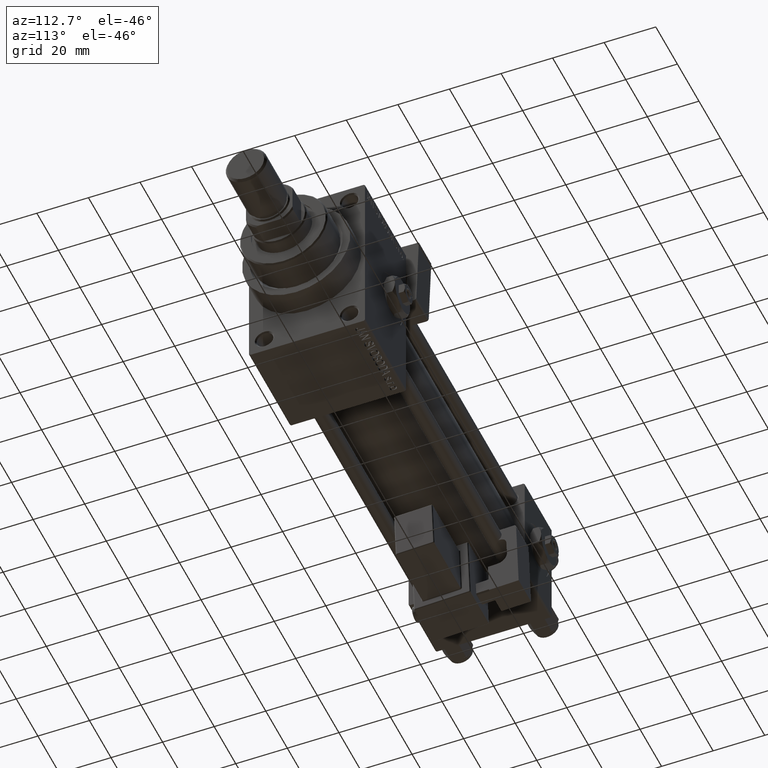
[diagram: clean part render]
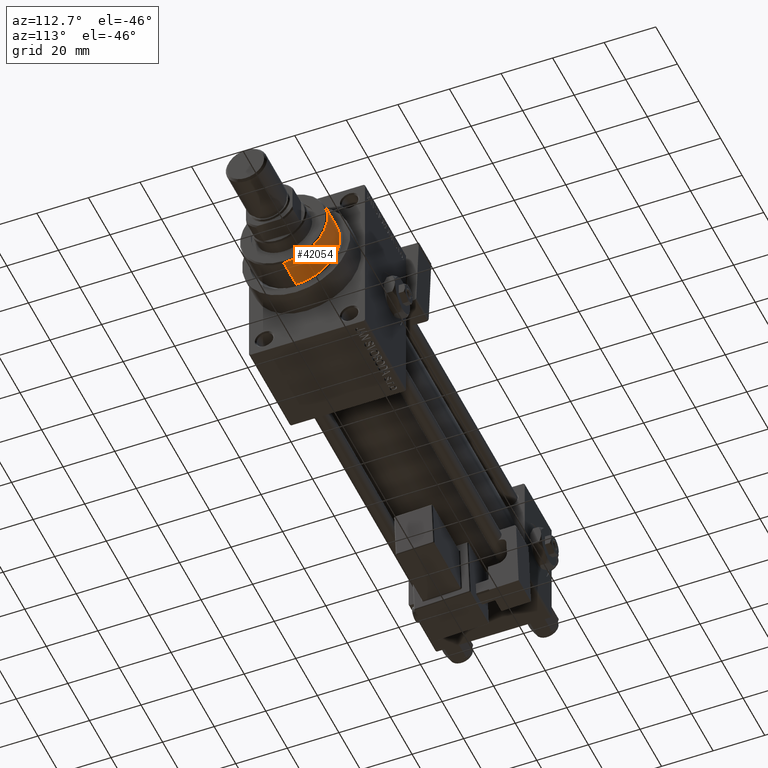
[diagram: same view with one face highlighted and labeled with its STEP entity id]
A machine part, auxiliary view. The second image highlights one B-rep face of the part: STEP entity #42054.
In plain terms, the highlighted cylindrical surface (partial cylindrical patch) has radius 17 mm, axis along (-1, 0, 0).
Its self-contained STEP definition (entity closure, byte-faithful):
#510 = EDGE_CURVE ( 'NONE', #12654, #6562, #22216, .T. ) ;
#794 = LINE ( 'NONE', #26452, #39893 ) ;
#3010 = DIRECTION ( 'NONE',  ( 0.000000000000000000, 0.000000000000000000, -1.000000000000000000 ) ) ;
#3504 = VERTEX_POINT ( 'NONE', #23477 ) ;
#3932 = LINE ( 'NONE', #35963, #7399 ) ;
#5121 = AXIS2_PLACEMENT_3D ( 'NONE', #20643, #41606, #36663 ) ;
#5428 = ORIENTED_EDGE ( 'NONE', *, *, #12730, .T. ) ;
#6562 = VERTEX_POINT ( 'NONE', #33799 ) ;
#7399 = VECTOR ( 'NONE', #12079, 1000.000000000000000 ) ;
#8351 = CARTESIAN_POINT ( 'NONE',  ( 0.000000000000000000, 0.000000000000000000, 55.26000000000000512 ) ) ;
#8728 = ORIENTED_EDGE ( 'NONE', *, *, #34518, .F. ) ;
#10928 = ORIENTED_EDGE ( 'NONE', *, *, #27652, .T. ) ;
#12079 = DIRECTION ( 'NONE',  ( -0.000000000000000000, -0.000000000000000000, -1.000000000000000000 ) ) ;
#12654 = VERTEX_POINT ( 'NONE', #45045 ) ;
#12730 = EDGE_CURVE ( 'NONE', #40911, #3504, #42007, .T. ) ;
#14834 = CARTESIAN_POINT ( 'NONE',  ( 0.000000000000000000, 0.000000000000000000, 54.76000000000001222 ) ) ;
#17072 = DIRECTION ( 'NONE',  ( -0.000000000000000000, -0.000000000000000000, -1.000000000000000000 ) ) ;
#17141 = EDGE_LOOP ( 'NONE', ( #8728, #27914, #10928, #5428 ) ) ;
#19889 = FACE_OUTER_BOUND ( 'NONE', #17141, .T. ) ;
#20643 = CARTESIAN_POINT ( 'NONE',  ( 0.000000000000000000, 0.000000000000000000, 43.25999999999999801 ) ) ;
#22216 = CIRCLE ( 'NONE', #51516, 17.00000000000000000 ) ;
#22721 = DIRECTION ( 'NONE',  ( 1.000000000000000000, 0.000000000000000000, 0.000000000000000000 ) ) ;
#22879 = AXIS2_PLACEMENT_3D ( 'NONE', #8351, #35905, #51369 ) ;
#23477 = CARTESIAN_POINT ( 'NONE',  ( 17.00000000000000000, 2.081899558550500280E-15, 43.25999999999999801 ) ) ;
#26452 = CARTESIAN_POINT ( 'NONE',  ( -17.00000000000000000, 0.000000000000000000, 55.26000000000000512 ) ) ;
#27652 = EDGE_CURVE ( 'NONE', #6562, #40911, #794, .T. ) ;
#27914 = ORIENTED_EDGE ( 'NONE', *, *, #510, .T. ) ;
#33799 = CARTESIAN_POINT ( 'NONE',  ( -17.00000000000000000, 0.000000000000000000, 54.76000000000001222 ) ) ;
#34518 = EDGE_CURVE ( 'NONE', #12654, #3504, #3932, .T. ) ;
#35236 = CARTESIAN_POINT ( 'NONE',  ( -17.00000000000000000, 0.000000000000000000, 43.25999999999999801 ) ) ;
#35905 = DIRECTION ( 'NONE',  ( -0.000000000000000000, -0.000000000000000000, -1.000000000000000000 ) ) ;
#35963 = CARTESIAN_POINT ( 'NONE',  ( 17.00000000000000000, 2.081899558550500280E-15, 55.26000000000000512 ) ) ;
#36663 = DIRECTION ( 'NONE',  ( 1.000000000000000000, 0.000000000000000000, 0.000000000000000000 ) ) ;
#39893 = VECTOR ( 'NONE', #17072, 1000.000000000000000 ) ;
#40911 = VERTEX_POINT ( 'NONE', #35236 ) ;
#41606 = DIRECTION ( 'NONE',  ( 0.000000000000000000, 0.000000000000000000, 1.000000000000000000 ) ) ;
#42007 = CIRCLE ( 'NONE', #5121, 17.00000000000000000 ) ;
#42054 = ADVANCED_FACE ( 'NONE', ( #19889 ), #48485, .T. ) ;
#45045 = CARTESIAN_POINT ( 'NONE',  ( 17.00000000000000000, 2.081899558550500280E-15, 54.76000000000001222 ) ) ;
#48485 = CYLINDRICAL_SURFACE ( 'NONE', #22879, 17.00000000000000000 ) ;
#51369 = DIRECTION ( 'NONE',  ( -1.000000000000000000, 0.000000000000000000, 0.000000000000000000 ) ) ;
#51516 = AXIS2_PLACEMENT_3D ( 'NONE', #14834, #3010, #22721 ) ;